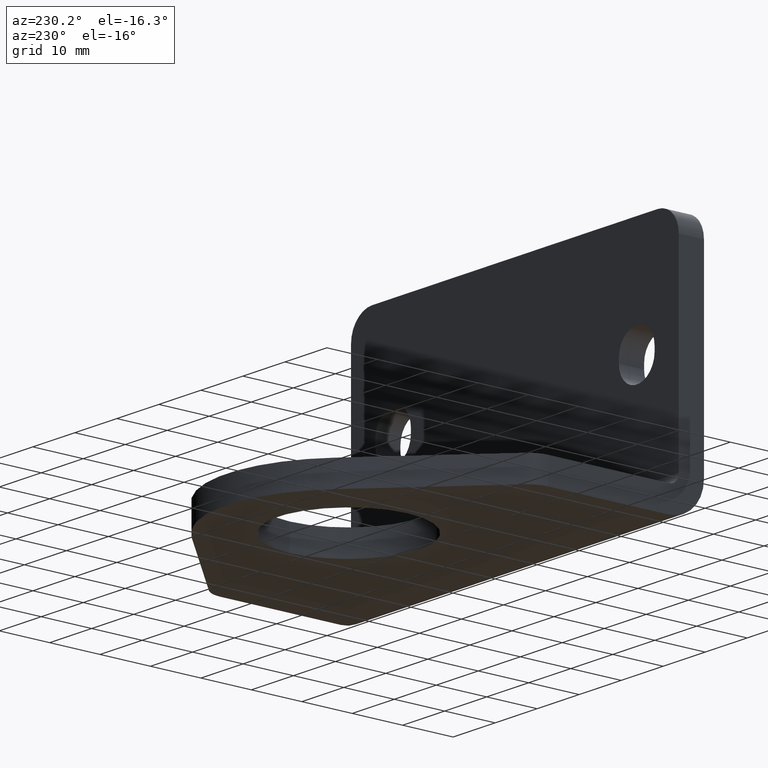
[diagram: clean part render]
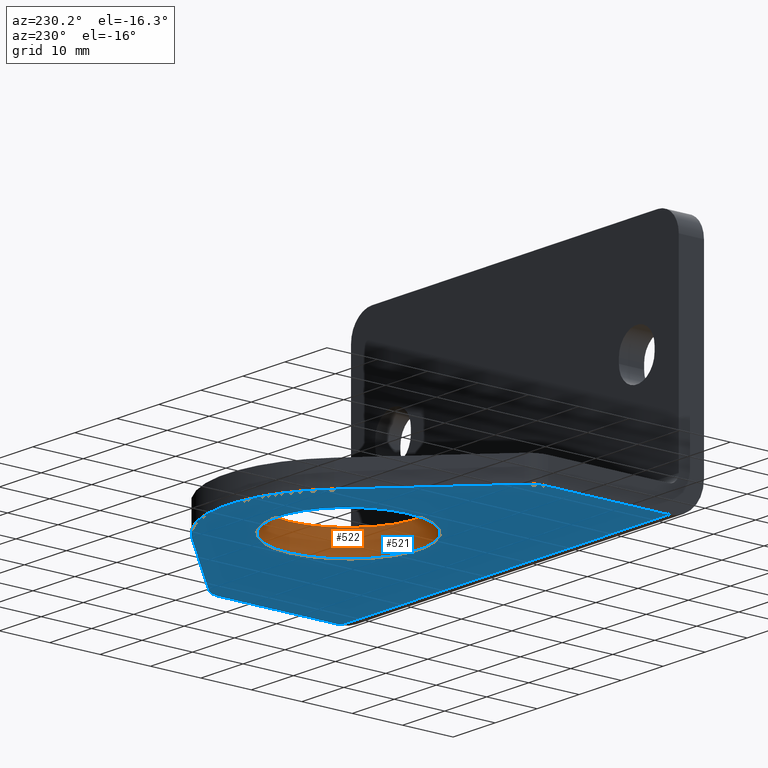
[diagram: same view with the hole feature highlighted: cylindrical wall and planar end face, labeled with their STEP entity ids]
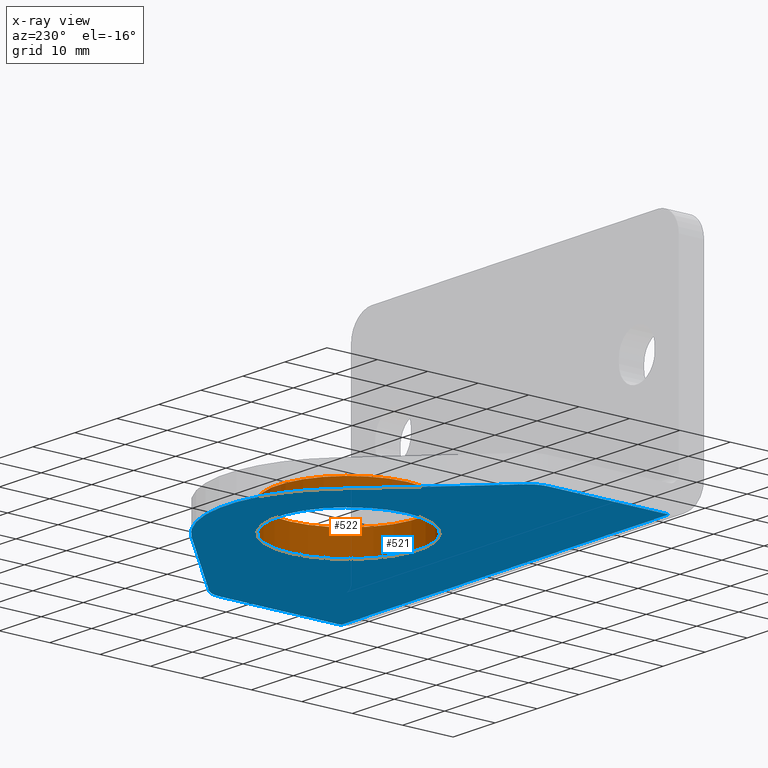
[diagram: x-ray of the same camera — body ghosted, the hole faces saturated]
A machine part, auxiliary view. The highlighted faces form one hole feature of diameter 28 mm: the cylindrical wall (entity #522, orange) and its adjacent planar end face (entity #521, blue) — they share a circular edge in the B-rep.
The next image is the same camera in x-ray (body ghosted, the hole faces saturated) — the bore reads through the body.
Wall:
#59=FACE_OUTER_BOUND('',#93,.T.);
#93=EDGE_LOOP('',(#452,#453,#454,#455));
#142=LINE('',#887,#191);
#191=VECTOR('',#732,14.);
#219=CIRCLE('',#593,14.);
#220=CIRCLE('',#595,14.);
#263=VERTEX_POINT('',#883);
#264=VERTEX_POINT('',#886);
#329=EDGE_CURVE('',#263,#263,#219,.T.);
#330=EDGE_CURVE('',#263,#264,#142,.T.);
#331=EDGE_CURVE('',#264,#264,#220,.T.);
#452=ORIENTED_EDGE('',*,*,#329,.F.);
#453=ORIENTED_EDGE('',*,*,#330,.T.);
#454=ORIENTED_EDGE('',*,*,#331,.F.);
#455=ORIENTED_EDGE('',*,*,#330,.F.);
#497=CYLINDRICAL_SURFACE('',#594,14.);
#522=ADVANCED_FACE('',(#59),#497,.F.);
#593=AXIS2_PLACEMENT_3D('',#884,#728,#729);
#594=AXIS2_PLACEMENT_3D('',#885,#730,#731);
#595=AXIS2_PLACEMENT_3D('',#888,#733,#734);
#728=DIRECTION('center_axis',(0.,0.,1.));
#729=DIRECTION('ref_axis',(-1.,0.,0.));
#730=DIRECTION('center_axis',(0.,0.,1.));
#731=DIRECTION('ref_axis',(-1.,0.,0.));
#732=DIRECTION('',(0.,0.,1.));
#733=DIRECTION('center_axis',(0.,0.,-1.));
#734=DIRECTION('ref_axis',(-1.,0.,0.));
#883=CARTESIAN_POINT('',(73.6042547020734,259.400291911824,0.));
#884=CARTESIAN_POINT('Origin',(59.6042547020734,259.400291911824,0.));
#885=CARTESIAN_POINT('Origin',(59.6042547020734,259.400291911824,0.));
#886=CARTESIAN_POINT('',(73.6042547020734,259.400291911824,5.));
#887=CARTESIAN_POINT('',(73.6042547020734,259.400291911824,0.));
#888=CARTESIAN_POINT('Origin',(59.6042547020734,259.400291911824,5.));
End face:
#19=FACE_BOUND('',#92,.T.);
#33=PLANE('',#589);
#58=FACE_OUTER_BOUND('',#91,.T.);
#91=EDGE_LOOP('',(#443,#444,#445,#446,#447,#448,#449,#450));
#92=EDGE_LOOP('',(#451));
#130=LINE('',#849,#179);
#136=LINE('',#867,#185);
#139=LINE('',#873,#188);
#140=LINE('',#877,#189);
#141=LINE('',#881,#190);
#179=VECTOR('',#690,10.);
#185=VECTOR('',#714,10.);
#188=VECTOR('',#719,10.);
#189=VECTOR('',#722,10.);
#190=VECTOR('',#725,10.);
#216=CIRCLE('',#590,5.);
#217=CIRCLE('',#591,24.);
#218=CIRCLE('',#592,5.00000000000001);
#219=CIRCLE('',#593,14.);
#252=VERTEX_POINT('',#846);
#253=VERTEX_POINT('',#848);
#256=VERTEX_POINT('',#866);
#258=VERTEX_POINT('',#872);
#259=VERTEX_POINT('',#874);
#260=VERTEX_POINT('',#876);
#261=VERTEX_POINT('',#878);
#262=VERTEX_POINT('',#880);
#263=VERTEX_POINT('',#883);
#311=EDGE_CURVE('',#253,#252,#130,.T.);
#320=EDGE_CURVE('',#253,#256,#136,.T.);
#323=EDGE_CURVE('',#258,#252,#139,.T.);
#324=EDGE_CURVE('',#259,#258,#216,.T.);
#325=EDGE_CURVE('',#260,#259,#140,.T.);
#326=EDGE_CURVE('',#261,#260,#217,.T.);
#327=EDGE_CURVE('',#262,#261,#141,.T.);
#328=EDGE_CURVE('',#256,#262,#218,.T.);
#329=EDGE_CURVE('',#263,#263,#219,.T.);
#443=ORIENTED_EDGE('',*,*,#311,.T.);
#444=ORIENTED_EDGE('',*,*,#323,.F.);
#445=ORIENTED_EDGE('',*,*,#324,.F.);
#446=ORIENTED_EDGE('',*,*,#325,.F.);
#447=ORIENTED_EDGE('',*,*,#326,.F.);
#448=ORIENTED_EDGE('',*,*,#327,.F.);
#449=ORIENTED_EDGE('',*,*,#328,.F.);
#450=ORIENTED_EDGE('',*,*,#320,.F.);
#451=ORIENTED_EDGE('',*,*,#329,.T.);
#521=ADVANCED_FACE('',(#58,#19),#33,.F.);
#589=AXIS2_PLACEMENT_3D('',#871,#717,#718);
#590=AXIS2_PLACEMENT_3D('',#875,#720,#721);
#591=AXIS2_PLACEMENT_3D('',#879,#723,#724);
#592=AXIS2_PLACEMENT_3D('',#882,#726,#727);
#593=AXIS2_PLACEMENT_3D('',#884,#728,#729);
#690=DIRECTION('',(-1.,0.,0.));
#714=DIRECTION('',(0.,1.,0.));
#717=DIRECTION('center_axis',(0.,0.,1.));
#718=DIRECTION('ref_axis',(1.,0.,0.));
#719=DIRECTION('',(0.,-1.,0.));
#720=DIRECTION('center_axis',(0.,0.,1.));
#721=DIRECTION('ref_axis',(-0.70710678118654,0.707106781186555,0.));
#722=DIRECTION('',(-0.707106781186552,-0.707106781186543,0.));
#723=DIRECTION('center_axis',(0.,0.,1.));
#724=DIRECTION('ref_axis',(0.70710678118655,0.707106781186545,0.));
#725=DIRECTION('',(-0.707106781186545,0.70710678118655,0.));
#726=DIRECTION('center_axis',(0.,0.,1.));
#727=DIRECTION('ref_axis',(1.,0.,0.));
#728=DIRECTION('center_axis',(0.,0.,1.));
#729=DIRECTION('ref_axis',(-1.,0.,0.));
#846=CARTESIAN_POINT('',(20.6042546020733,228.400291811824,0.));
#848=CARTESIAN_POINT('',(98.6042548020733,228.400291811824,0.));
#849=CARTESIAN_POINT('',(79.1042547520733,228.400291811824,0.));
#866=CARTESIAN_POINT('',(98.6042548020733,252.270349496913,0.));
#867=CARTESIAN_POINT('',(98.6042548020733,221.400291811824,0.));
#871=CARTESIAN_POINT('Origin',(59.6042547020733,223.900291811824,0.));
#872=CARTESIAN_POINT('',(20.6042546020733,252.270349496913,0.));
#873=CARTESIAN_POINT('',(20.6042546020733,252.270349496913,0.));
#874=CARTESIAN_POINT('',(22.0687206961406,255.805883402846,0.));
#875=CARTESIAN_POINT('Origin',(25.6042546020733,252.270349496913,0.));
#876=CARTESIAN_POINT('',(42.6336919535964,276.370854660301,0.));
#877=CARTESIAN_POINT('',(42.6336919535964,276.370854660301,0.));
#878=CARTESIAN_POINT('',(76.5748174505506,276.370854660301,0.));
#879=CARTESIAN_POINT('Origin',(59.6042547020734,259.400291911824,0.));
#880=CARTESIAN_POINT('',(97.1397887080061,255.805883402846,0.));
#881=CARTESIAN_POINT('',(97.1397887080061,255.805883402846,0.));
#882=CARTESIAN_POINT('Origin',(93.6042548020733,252.270349496913,0.));
#883=CARTESIAN_POINT('',(73.6042547020734,259.400291911824,0.));
#884=CARTESIAN_POINT('Origin',(59.6042547020734,259.400291911824,0.));